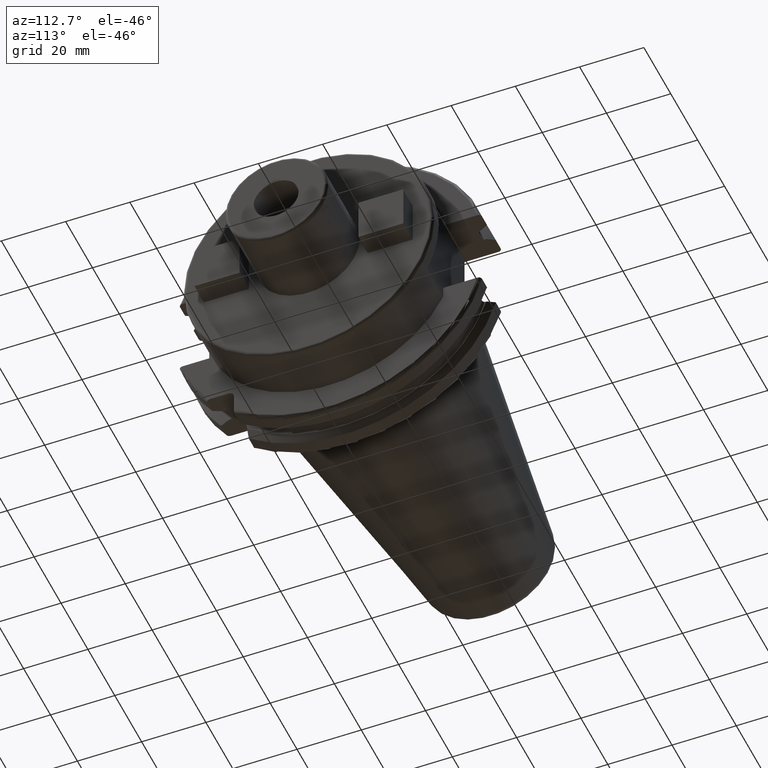
[diagram: clean part render]
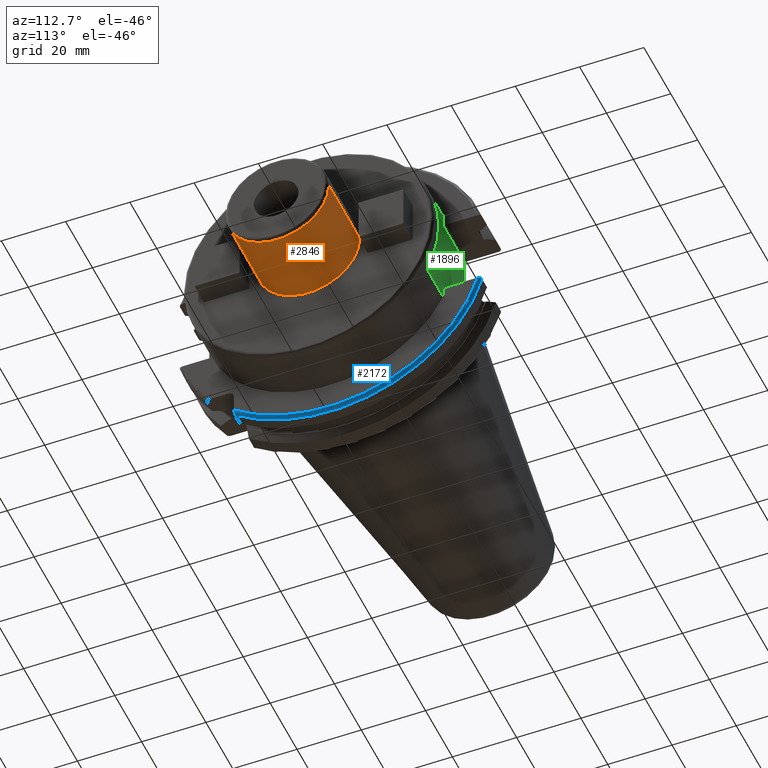
[diagram: same view with three faces highlighted in distinct colors, each labeled with its STEP entity id]
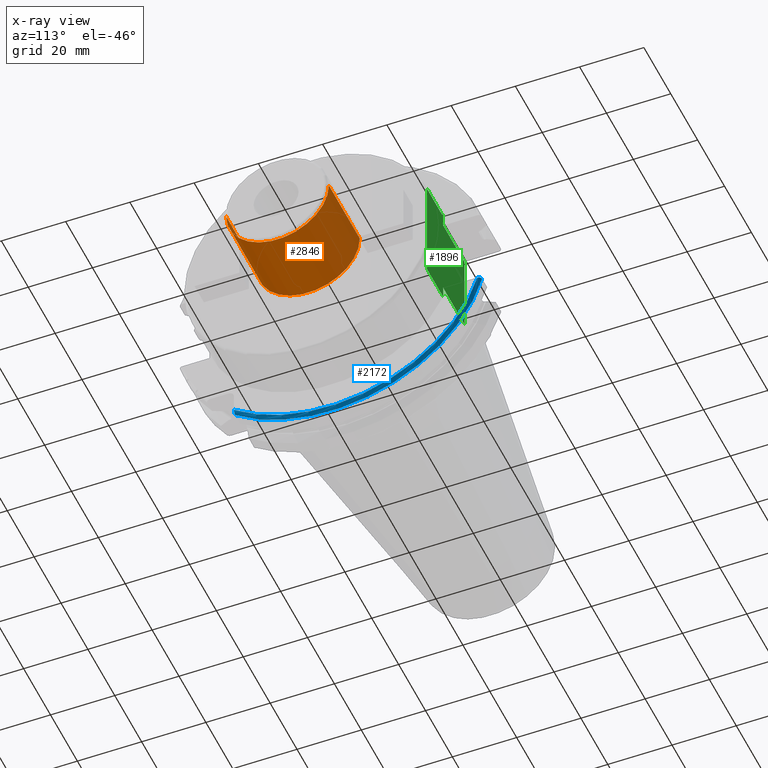
[diagram: x-ray of the same camera — body ghosted, the three highlighted faces saturated]
A machine part, auxiliary view with three faces highlighted in distinct colors.
The next image is the same camera in x-ray (body ghosted, the three faces saturated) — at least one of them is partly hidden behind the body in this view.
Their STEP definitions:

[orange] entity #2846 — the highlighted cylindrical surface (partial cylindrical patch) has radius 16 mm, axis along (1, 0, 0).
#1020=CARTESIAN_POINT('',(3.5E1,0.E0,0.E0));
#1021=DIRECTION('',(-1.E0,0.E0,0.E0));
#1022=DIRECTION('',(0.E0,1.E0,0.E0));
#1023=AXIS2_PLACEMENT_3D('',#1020,#1021,#1022);
#1082=CARTESIAN_POINT('',(5.8E1,0.E0,0.E0));
#1083=DIRECTION('',(-1.E0,0.E0,0.E0));
#1084=DIRECTION('',(0.E0,1.E0,0.E0));
#1085=AXIS2_PLACEMENT_3D('',#1082,#1083,#1084);
#1087=DIRECTION('',(-1.E0,0.E0,1.851117811401E-14));
#1088=VECTOR('',#1087,2.3E1);
#1089=CARTESIAN_POINT('',(5.8E1,1.6E1,-4.244508067031E-13));
#1090=LINE('',#1089,#1088);
#1091=DIRECTION('',(-1.E0,0.E0,-1.879881153305E-14));
#1092=VECTOR('',#1091,2.3E1);
#1093=CARTESIAN_POINT('',(5.8E1,-1.6E1,4.310663753411E-13));
#1094=LINE('',#1093,#1092);
#1628=CARTESIAN_POINT('',(3.5E1,1.6E1,0.E0));
#1629=CARTESIAN_POINT('',(3.5E1,-1.6E1,0.E0));
#1630=VERTEX_POINT('',#1628);
#1631=VERTEX_POINT('',#1629);
#1650=CARTESIAN_POINT('',(5.8E1,1.6E1,0.E0));
#1651=CARTESIAN_POINT('',(5.8E1,-1.6E1,0.E0));
#1652=VERTEX_POINT('',#1650);
#1653=VERTEX_POINT('',#1651);
#2835=CARTESIAN_POINT('',(1.70525E1,0.E0,0.E0));
#2836=DIRECTION('',(1.E0,0.E0,0.E0));
#2837=DIRECTION('',(0.E0,-1.E0,0.E0));
#2838=AXIS2_PLACEMENT_3D('',#2835,#2836,#2837);
#2839=CYLINDRICAL_SURFACE('',#2838,1.6E1);
#2840=ORIENTED_EDGE('',*,*,#2826,.F.);
#2841=ORIENTED_EDGE('',*,*,#2801,.T.);
#2842=ORIENTED_EDGE('',*,*,#2766,.T.);
#2843=ORIENTED_EDGE('',*,*,#2798,.F.);
#2844=EDGE_LOOP('',(#2840,#2841,#2842,#2843));
#2845=FACE_OUTER_BOUND('',#2844,.F.);
#2846=ADVANCED_FACE('',(#2845),#2839,.T.);
#1024=CIRCLE('',#1023,1.6E1);
#1086=CIRCLE('',#1085,1.6E1);
#2766=EDGE_CURVE('',#1630,#1631,#1024,.T.);
#2798=EDGE_CURVE('',#1653,#1631,#1094,.T.);
#2801=EDGE_CURVE('',#1652,#1630,#1090,.T.);
#2826=EDGE_CURVE('',#1652,#1653,#1086,.T.);

[blue] entity #2172 — the highlighted toroidal blend (fillet) surface has major radius 47.7375 mm and minor (blend) radius 1 mm.
#304=CARTESIAN_POINT('',(1.805E1,4.699929686974E1,-1.29E1));
#305=CARTESIAN_POINT('',(1.812676342368E1,4.699929686974E1,-1.29E1));
#306=CARTESIAN_POINT('',(1.827575329770E1,4.698147245914E1,-1.29E1));
#307=CARTESIAN_POINT('',(1.849056832427E1,4.690313408822E1,-1.29E1));
#308=CARTESIAN_POINT('',(1.868190698842E1,4.677722381974E1,-1.29E1));
#309=CARTESIAN_POINT('',(1.884050497536E1,4.661134760606E1,-1.29E1));
#310=CARTESIAN_POINT('',(1.895953365851E1,4.641358752589E1,-1.29E1));
#311=CARTESIAN_POINT('',(1.903320906929E1,4.619315655817E1,-1.29E1));
#312=CARTESIAN_POINT('',(1.905E1,4.604021961607E1,-1.29E1));
#313=CARTESIAN_POINT('',(1.905E1,4.596149373389E1,-1.29E1));
#315=CARTESIAN_POINT('',(1.905E1,-2.985E1,-3.725381062724E1));
#316=CARTESIAN_POINT('',(1.905E1,-2.985E1,-3.738469466089E1));
#317=CARTESIAN_POINT('',(1.902018122037E1,-2.985E1,-3.763003230112E1));
#318=CARTESIAN_POINT('',(1.889737682100E1,-2.985E1,-3.796247242770E1));
#319=CARTESIAN_POINT('',(1.872069975737E1,-2.985E1,-3.821853261177E1));
#320=CARTESIAN_POINT('',(1.851107723549E1,-2.985E1,-3.839881428419E1));
#321=CARTESIAN_POINT('',(1.828305662300E1,-2.985E1,-3.850407117903E1));
#322=CARTESIAN_POINT('',(1.812863534913E1,-2.985E1,-3.852689198793E1));
#323=CARTESIAN_POINT('',(1.805E1,-2.985E1,-3.852689198793E1));
#325=CARTESIAN_POINT('',(1.905E1,0.E0,0.E0));
#326=DIRECTION('',(-1.E0,0.E0,0.E0));
#327=DIRECTION('',(0.E0,9.627964123359E-1,-2.702278083268E-1));
#328=AXIS2_PLACEMENT_3D('',#325,#326,#327);
#383=CARTESIAN_POINT('',(1.805E1,0.E0,0.E0));
#384=DIRECTION('',(-1.E0,0.E0,0.E0));
#385=DIRECTION('',(0.E0,9.643354064066E-1,-2.646832521159E-1));
#386=AXIS2_PLACEMENT_3D('',#383,#384,#385);
#1567=CARTESIAN_POINT('',(1.805E1,4.699929686974E1,-1.29E1));
#1568=VERTEX_POINT('',#1567);
#1576=VERTEX_POINT('',#313);
#1593=CARTESIAN_POINT('',(1.905E1,-2.985E1,-3.725381062724E1));
#1594=VERTEX_POINT('',#1593);
#1595=CARTESIAN_POINT('',(1.805E1,-2.985E1,-3.852689198793E1));
#1596=VERTEX_POINT('',#1595);
#2160=CARTESIAN_POINT('',(1.805E1,0.E0,0.E0));
#2161=DIRECTION('',(1.E0,0.E0,0.E0));
#2162=DIRECTION('',(0.E0,-1.E0,0.E0));
#2163=AXIS2_PLACEMENT_3D('',#2160,#2161,#2162);
#2164=TOROIDAL_SURFACE('',#2163,4.77375E1,1.E0);
#2165=ORIENTED_EDGE('',*,*,#1927,.F.);
#2167=ORIENTED_EDGE('',*,*,#2166,.T.);
#2168=ORIENTED_EDGE('',*,*,#2134,.F.);
#2169=ORIENTED_EDGE('',*,*,#1962,.F.);
#2170=EDGE_LOOP('',(#2165,#2167,#2168,#2169));
#2171=FACE_OUTER_BOUND('',#2170,.F.);
#2172=ADVANCED_FACE('',(#2171),#2164,.T.);
#314=B_SPLINE_CURVE_WITH_KNOTS('',3,(#304,#305,#306,#307,#308,#309,#310,#311,
#312,#313),.UNSPECIFIED.,.F.,.F.,(4,1,1,1,1,1,1,4),(0.E0,1.428571428571E-1,
2.857142857143E-1,4.285714285714E-1,5.714285714286E-1,7.142857142857E-1,
8.571428571429E-1,1.E0),.UNSPECIFIED.);
#324=B_SPLINE_CURVE_WITH_KNOTS('',3,(#315,#316,#317,#318,#319,#320,#321,#322,
#323),.UNSPECIFIED.,.F.,.F.,(4,1,1,1,1,1,4),(0.E0,1.666666666667E-1,
3.333333333333E-1,5.E-1,6.666666666667E-1,8.333333333333E-1,1.E0),
.UNSPECIFIED.);
#329=CIRCLE('',#328,4.77375E1);
#387=CIRCLE('',#386,4.87375E1);
#1927=EDGE_CURVE('',#1568,#1576,#314,.T.);
#1962=EDGE_CURVE('',#1576,#1594,#329,.T.);
#2134=EDGE_CURVE('',#1594,#1596,#324,.T.);
#2166=EDGE_CURVE('',#1568,#1596,#387,.T.);

[green] entity #1896 — the highlighted planar face has unit normal (0, -1, 0).
#96=CARTESIAN_POINT('',(3.161444226151E0,3.53E1,1.136082451233E-13));
#97=CARTESIAN_POINT('',(3.161444226151E0,3.53E1,-2.287557745853E-1));
#98=CARTESIAN_POINT('',(3.162734010751E0,3.53E1,-6.792530123044E-1));
#99=CARTESIAN_POINT('',(3.167877030309E0,3.53E1,-1.331895850106E0));
#100=CARTESIAN_POINT('',(3.175250793624E0,3.53E1,-1.967616454588E0));
#101=CARTESIAN_POINT('',(3.183670148061E0,3.53E1,-2.589717830169E0));
#102=CARTESIAN_POINT('',(3.191796133338E0,3.53E1,-3.202378106077E0));
#103=CARTESIAN_POINT('',(3.198127290791E0,3.53E1,-3.809054455619E0));
#104=CARTESIAN_POINT('',(3.2E0,3.53E1,-4.213157466434E0));
#105=CARTESIAN_POINT('',(3.2E0,3.53E1,-4.414818795828E0));
#122=DIRECTION('',(0.E0,0.E0,1.E0));
#123=VECTOR('',#122,3.680410127617E0);
#124=CARTESIAN_POINT('',(1.905E1,3.53E1,-1.658041012762E1));
#125=LINE('',#124,#123);
#126=DIRECTION('',(0.E0,0.E0,-1.E0));
#127=VECTOR('',#126,3.316082025523E1);
#128=CARTESIAN_POINT('',(3.115E1,3.53E1,1.658041012762E1));
#129=LINE('',#128,#127);
#130=DIRECTION('',(0.E0,0.E0,1.E0));
#131=VECTOR('',#130,5.912495847176E0);
#132=CARTESIAN_POINT('',(1.905E1,3.53E1,1.29E1));
#133=LINE('',#132,#131);
#134=DIRECTION('',(-1.E0,0.E0,0.E0));
#135=VECTOR('',#134,1.585E1);
#136=CARTESIAN_POINT('',(1.905E1,3.53E1,1.29E1));
#137=LINE('',#136,#135);
#138=DIRECTION('',(-1.E0,0.E0,0.E0));
#139=VECTOR('',#138,1.585E1);
#140=CARTESIAN_POINT('',(1.905E1,3.53E1,-1.29E1));
#141=LINE('',#140,#139);
#180=CARTESIAN_POINT('',(2.005E1,3.53E1,1.658041012762E1));
#181=CARTESIAN_POINT('',(2.000090322981E1,3.53E1,1.658041012762E1));
#182=CARTESIAN_POINT('',(1.990487928692E1,3.53E1,1.659714434515E1));
#183=CARTESIAN_POINT('',(1.976508569491E1,3.53E1,1.666969166638E1));
#184=CARTESIAN_POINT('',(1.963626611654E1,3.53E1,1.678248303933E1));
#185=CARTESIAN_POINT('',(1.951821639619E1,3.53E1,1.692952788734E1));
#186=CARTESIAN_POINT('',(1.940975990911E1,3.53E1,1.711013289754E1));
#187=CARTESIAN_POINT('',(1.931402903484E1,3.53E1,1.731723568309E1));
#188=CARTESIAN_POINT('',(1.923044554788E1,3.53E1,1.754998829461E1));
#189=CARTESIAN_POINT('',(1.915877916022E1,3.53E1,1.781230232277E1));
#190=CARTESIAN_POINT('',(1.910112525462E1,3.53E1,1.810684820702E1));
#191=CARTESIAN_POINT('',(1.906109024194E1,3.53E1,1.843610087795E1));
#192=CARTESIAN_POINT('',(1.905E1,3.53E1,1.868272667535E1));
#193=CARTESIAN_POINT('',(1.905E1,3.53E1,1.881249584718E1));
#252=DIRECTION('',(0.E0,0.E0,-1.E0));
#253=VECTOR('',#252,8.485181204172E0);
#254=CARTESIAN_POINT('',(3.2E0,3.53E1,-4.414818795828E0));
#255=LINE('',#254,#253);
#256=DIRECTION('',(0.E0,0.E0,-1.E0));
#257=VECTOR('',#256,8.485181204172E0);
#258=CARTESIAN_POINT('',(3.2E0,3.53E1,1.29E1));
#259=LINE('',#258,#257);
#935=CARTESIAN_POINT('',(3.2E0,3.53E1,4.414818795828E0));
#936=CARTESIAN_POINT('',(3.2E0,3.53E1,4.213098987331E0));
#937=CARTESIAN_POINT('',(3.198126239348E0,3.53E1,3.808889642023E0));
#938=CARTESIAN_POINT('',(3.191792541487E0,3.53E1,3.202078124088E0));
#939=CARTESIAN_POINT('',(3.183664786024E0,3.53E1,2.589329618622E0));
#940=CARTESIAN_POINT('',(3.175245424270E0,3.53E1,1.967199873297E0));
#941=CARTESIAN_POINT('',(3.167873523896E0,3.53E1,1.331533559003E0));
#942=CARTESIAN_POINT('',(3.162733016852E0,3.53E1,6.790196322901E-1));
#943=CARTESIAN_POINT('',(3.161444226151E0,3.53E1,2.286685292050E-1));
#944=CARTESIAN_POINT('',(3.161444226151E0,3.53E1,1.136082451233E-13));
#955=DIRECTION('',(1.E0,0.E0,0.E0));
#956=VECTOR('',#955,1.11E1);
#957=CARTESIAN_POINT('',(2.005E1,3.53E1,1.658041012762E1));
#958=LINE('',#957,#956);
#1001=DIRECTION('',(1.E0,0.E0,0.E0));
#1002=VECTOR('',#1001,1.21E1);
#1003=CARTESIAN_POINT('',(1.905E1,3.53E1,-1.658041012762E1));
#1004=LINE('',#1003,#1002);
#1546=CARTESIAN_POINT('',(3.2E0,3.53E1,1.29E1));
#1548=VERTEX_POINT('',#1546);
#1549=CARTESIAN_POINT('',(3.2E0,3.53E1,4.414818795828E0));
#1550=VERTEX_POINT('',#1549);
#1551=CARTESIAN_POINT('',(3.2E0,3.53E1,-4.414818795828E0));
#1552=CARTESIAN_POINT('',(3.2E0,3.53E1,-1.29E1));
#1553=VERTEX_POINT('',#1551);
#1554=VERTEX_POINT('',#1552);
#1573=VERTEX_POINT('',#944);
#1690=CARTESIAN_POINT('',(2.005E1,3.53E1,1.658041012762E1));
#1691=CARTESIAN_POINT('',(3.115E1,3.53E1,1.658041012762E1));
#1692=VERTEX_POINT('',#1690);
#1693=VERTEX_POINT('',#1691);
#1696=CARTESIAN_POINT('',(1.905E1,3.53E1,-1.658041012762E1));
#1697=CARTESIAN_POINT('',(3.115E1,3.53E1,-1.658041012762E1));
#1698=VERTEX_POINT('',#1696);
#1699=VERTEX_POINT('',#1697);
#1700=VERTEX_POINT('',#193);
#1701=CARTESIAN_POINT('',(1.905E1,3.53E1,1.29E1));
#1702=VERTEX_POINT('',#1701);
#1703=CARTESIAN_POINT('',(1.905E1,3.53E1,-1.29E1));
#1704=VERTEX_POINT('',#1703);
#1866=CARTESIAN_POINT('',(1.905E1,3.53E1,1.29E1));
#1867=DIRECTION('',(0.E0,-1.E0,0.E0));
#1868=DIRECTION('',(0.E0,0.E0,-1.E0));
#1869=AXIS2_PLACEMENT_3D('',#1866,#1867,#1868);
#1870=PLANE('',#1869);
#1872=ORIENTED_EDGE('',*,*,#1871,.F.);
#1874=ORIENTED_EDGE('',*,*,#1873,.F.);
#1876=ORIENTED_EDGE('',*,*,#1875,.T.);
#1878=ORIENTED_EDGE('',*,*,#1877,.F.);
#1880=ORIENTED_EDGE('',*,*,#1879,.F.);
#1882=ORIENTED_EDGE('',*,*,#1881,.T.);
#1884=ORIENTED_EDGE('',*,*,#1883,.F.);
#1886=ORIENTED_EDGE('',*,*,#1885,.T.);
#1888=ORIENTED_EDGE('',*,*,#1887,.T.);
#1890=ORIENTED_EDGE('',*,*,#1889,.T.);
#1891=ORIENTED_EDGE('',*,*,#1854,.T.);
#1893=ORIENTED_EDGE('',*,*,#1892,.T.);
#1894=EDGE_LOOP('',(#1872,#1874,#1876,#1878,#1880,#1882,#1884,#1886,#1888,#1890,
#1891,#1893));
#1895=FACE_OUTER_BOUND('',#1894,.F.);
#1896=ADVANCED_FACE('',(#1895),#1870,.F.);
#106=B_SPLINE_CURVE_WITH_KNOTS('',3,(#96,#97,#98,#99,#100,#101,#102,#103,#104,
#105),.UNSPECIFIED.,.F.,.F.,(4,1,1,1,1,1,1,4),(0.E0,1.428571428571E-1,
2.857142857143E-1,4.285714285714E-1,5.714285714286E-1,7.142857142857E-1,
8.571428571429E-1,1.E0),.UNSPECIFIED.);
#194=B_SPLINE_CURVE_WITH_KNOTS('',3,(#180,#181,#182,#183,#184,#185,#186,#187,
#188,#189,#190,#191,#192,#193),.UNSPECIFIED.,.F.,.F.,(4,1,1,1,1,1,1,1,1,1,1,4),(
0.E0,9.090909090909E-2,1.818181818182E-1,2.727272727273E-1,3.636363636364E-1,
4.545454545455E-1,5.454545454545E-1,6.363636363636E-1,7.272727272727E-1,
8.181818181818E-1,9.090909090909E-1,1.E0),.UNSPECIFIED.);
#945=B_SPLINE_CURVE_WITH_KNOTS('',3,(#935,#936,#937,#938,#939,#940,#941,#942,
#943,#944),.UNSPECIFIED.,.F.,.F.,(4,1,1,1,1,1,1,4),(0.E0,1.428571428571E-1,
2.857142857143E-1,4.285714285714E-1,5.714285714286E-1,7.142857142857E-1,
8.571428571429E-1,1.E0),.UNSPECIFIED.);
#1854=EDGE_CURVE('',#1573,#1553,#106,.T.);
#1871=EDGE_CURVE('',#1704,#1554,#141,.T.);
#1873=EDGE_CURVE('',#1698,#1704,#125,.T.);
#1875=EDGE_CURVE('',#1698,#1699,#1004,.T.);
#1877=EDGE_CURVE('',#1693,#1699,#129,.T.);
#1879=EDGE_CURVE('',#1692,#1693,#958,.T.);
#1881=EDGE_CURVE('',#1692,#1700,#194,.T.);
#1883=EDGE_CURVE('',#1702,#1700,#133,.T.);
#1885=EDGE_CURVE('',#1702,#1548,#137,.T.);
#1887=EDGE_CURVE('',#1548,#1550,#259,.T.);
#1889=EDGE_CURVE('',#1550,#1573,#945,.T.);
#1892=EDGE_CURVE('',#1553,#1554,#255,.T.);